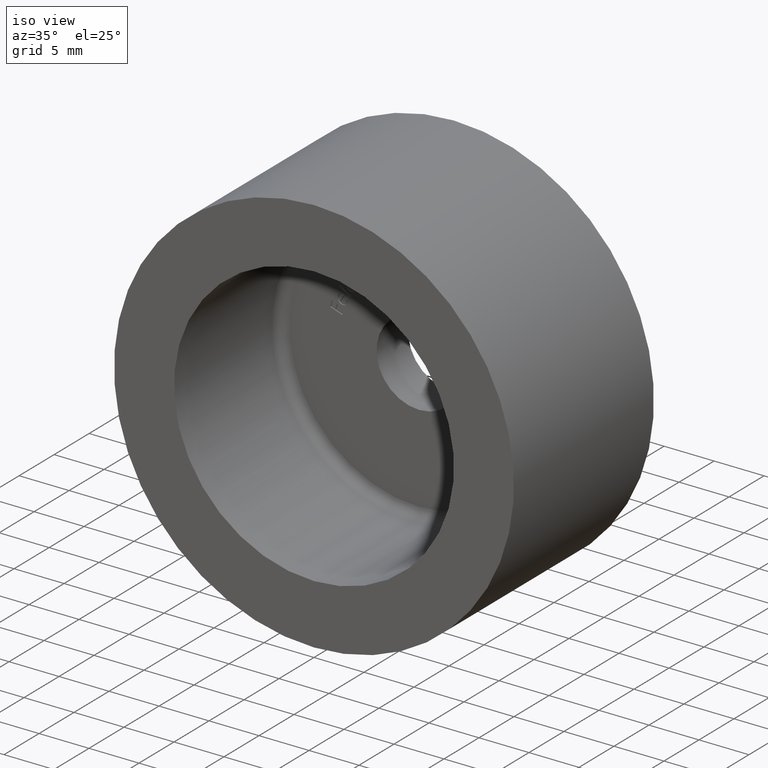
[diagram: clean part render]
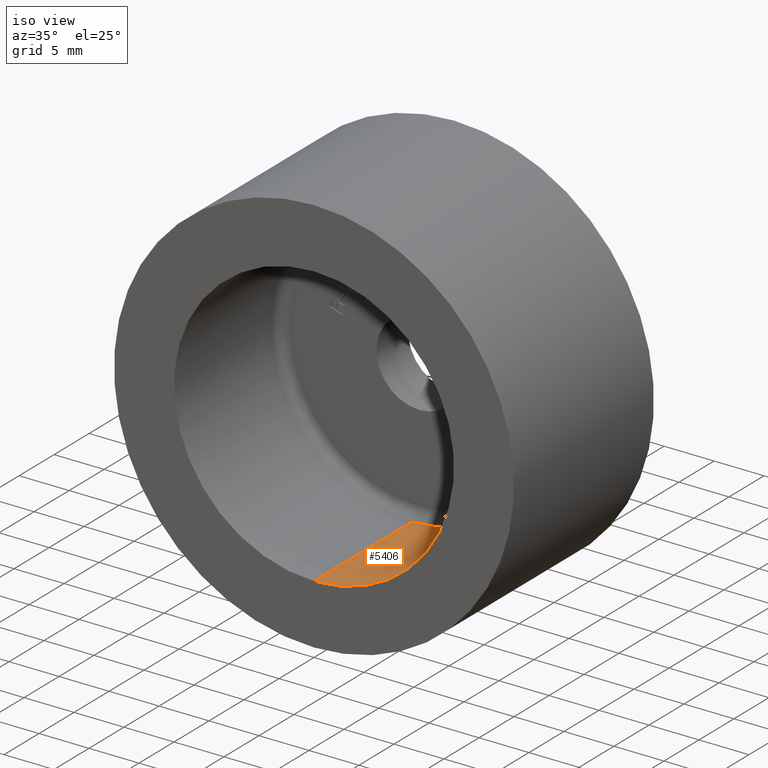
[diagram: same view with one face highlighted and labeled with its STEP entity id]
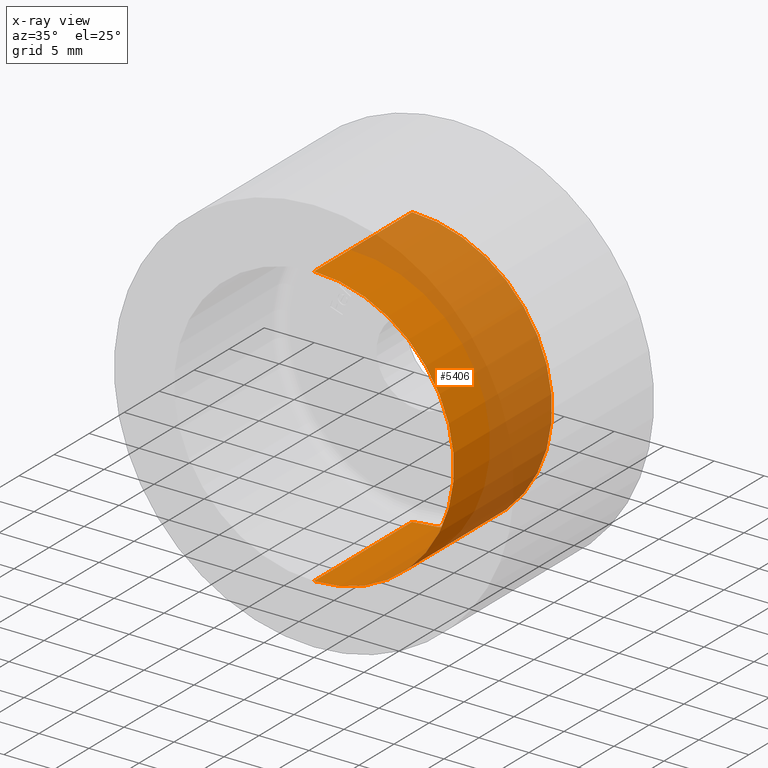
[diagram: x-ray of the same camera — body ghosted, the highlighted face saturated]
A machine part, iso view. The second image highlights one B-rep face of the part: STEP entity #5406.
The next image is the same camera in x-ray: the body ghosted, the highlighted face saturated — about 57% of this face is hidden behind the body in this view.
In plain terms, the highlighted cylindrical surface (partial cylindrical patch) has radius 14 mm, axis along (-0, -1, -0).
Its self-contained STEP definition (entity closure, byte-faithful):
#320 = DIRECTION ( 'NONE',  ( 0.000000000000000000, 0.000000000000000000, 1.000000000000000000 ) ) ;
#345 = DIRECTION ( 'NONE',  ( 0.000000000000000000, 0.000000000000000000, -1.000000000000000000 ) ) ;
#1025 = VERTEX_POINT ( 'NONE', #1897 ) ;
#1425 = VECTOR ( 'NONE', #15331, 1000.000000000000000 ) ;
#1897 = CARTESIAN_POINT ( 'NONE',  ( 1.714505518806294638E-15, 0.000000000000000000, 14.00000000000000000 ) ) ;
#2017 = VERTEX_POINT ( 'NONE', #10093 ) ;
#2666 = DIRECTION ( 'NONE',  ( -0.000000000000000000, 1.000000000000000000, -0.000000000000000000 ) ) ;
#2899 = CYLINDRICAL_SURFACE ( 'NONE', #5204, 14.00000000000000000 ) ;
#3306 = VERTEX_POINT ( 'NONE', #11484 ) ;
#3366 = ORIENTED_EDGE ( 'NONE', *, *, #10859, .F. ) ;
#4393 = EDGE_CURVE ( 'NONE', #2017, #1025, #10110, .T. ) ;
#4595 = CARTESIAN_POINT ( 'NONE',  ( 0.000000000000000000, 59.59797974644665430, 0.000000000000000000 ) ) ;
#5161 = ORIENTED_EDGE ( 'NONE', *, *, #8324, .T. ) ;
#5204 = AXIS2_PLACEMENT_3D ( 'NONE', #4595, #13135, #8250 ) ;
#5406 = ADVANCED_FACE ( 'NONE', ( #8946 ), #2899, .F. ) ;
#5546 = AXIS2_PLACEMENT_3D ( 'NONE', #6265, #2666, #320 ) ;
#5813 = ORIENTED_EDGE ( 'NONE', *, *, #4393, .T. ) ;
#6265 = CARTESIAN_POINT ( 'NONE',  ( 0.000000000000000000, 13.99999999999999822, 0.000000000000000000 ) ) ;
#6303 = ORIENTED_EDGE ( 'NONE', *, *, #7228, .T. ) ;
#7228 = EDGE_CURVE ( 'NONE', #9328, #3306, #12580, .T. ) ;
#8250 = DIRECTION ( 'NONE',  ( 0.000000000000000000, 0.000000000000000000, -1.000000000000000000 ) ) ;
#8324 = EDGE_CURVE ( 'NONE', #3306, #2017, #12085, .T. ) ;
#8676 = CARTESIAN_POINT ( 'NONE',  ( 0.000000000000000000, 0.000000000000000000, 0.000000000000000000 ) ) ;
#8840 = VECTOR ( 'NONE', #13164, 1000.000000000000000 ) ;
#8887 = CARTESIAN_POINT ( 'NONE',  ( 1.714505518806294638E-15, 13.99999999999999822, 14.00000000000000000 ) ) ;
#8946 = FACE_OUTER_BOUND ( 'NONE', #10185, .T. ) ;
#9328 = VERTEX_POINT ( 'NONE', #8887 ) ;
#10093 = CARTESIAN_POINT ( 'NONE',  ( 0.000000000000000000, 0.000000000000000000, -14.00000000000000000 ) ) ;
#10110 = CIRCLE ( 'NONE', #10817, 14.00000000000000000 ) ;
#10185 = EDGE_LOOP ( 'NONE', ( #3366, #6303, #5161, #5813 ) ) ;
#10817 = AXIS2_PLACEMENT_3D ( 'NONE', #8676, #11232, #345 ) ;
#10859 = EDGE_CURVE ( 'NONE', #9328, #1025, #12255, .T. ) ;
#11232 = DIRECTION ( 'NONE',  ( 0.000000000000000000, -1.000000000000000000, 0.000000000000000000 ) ) ;
#11484 = CARTESIAN_POINT ( 'NONE',  ( 0.000000000000000000, 13.99999999999999822, -14.00000000000000000 ) ) ;
#12085 = LINE ( 'NONE', #12121, #8840 ) ;
#12121 = CARTESIAN_POINT ( 'NONE',  ( 0.000000000000000000, 59.59797974644665430, -14.00000000000000000 ) ) ;
#12255 = LINE ( 'NONE', #15528, #1425 ) ;
#12580 = CIRCLE ( 'NONE', #5546, 14.00000000000000000 ) ;
#13135 = DIRECTION ( 'NONE',  ( -0.000000000000000000, -1.000000000000000000, -0.000000000000000000 ) ) ;
#13164 = DIRECTION ( 'NONE',  ( -0.000000000000000000, -1.000000000000000000, -0.000000000000000000 ) ) ;
#15331 = DIRECTION ( 'NONE',  ( -0.000000000000000000, -1.000000000000000000, -0.000000000000000000 ) ) ;
#15528 = CARTESIAN_POINT ( 'NONE',  ( 1.714505518806294638E-15, 59.59797974644665430, 14.00000000000000000 ) ) ;